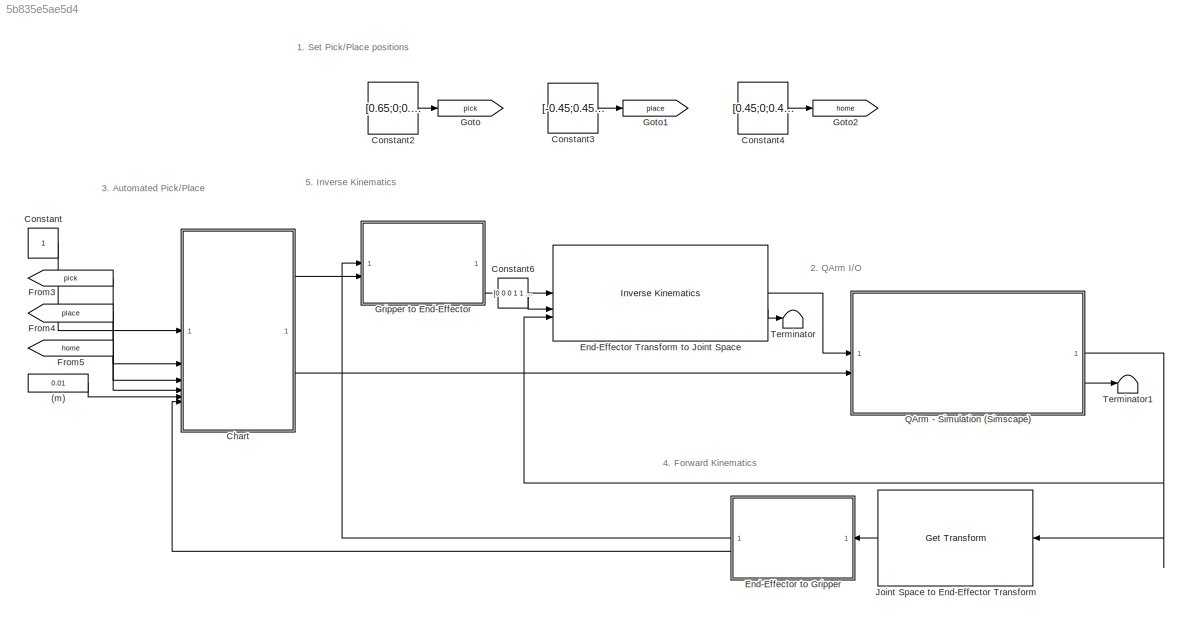
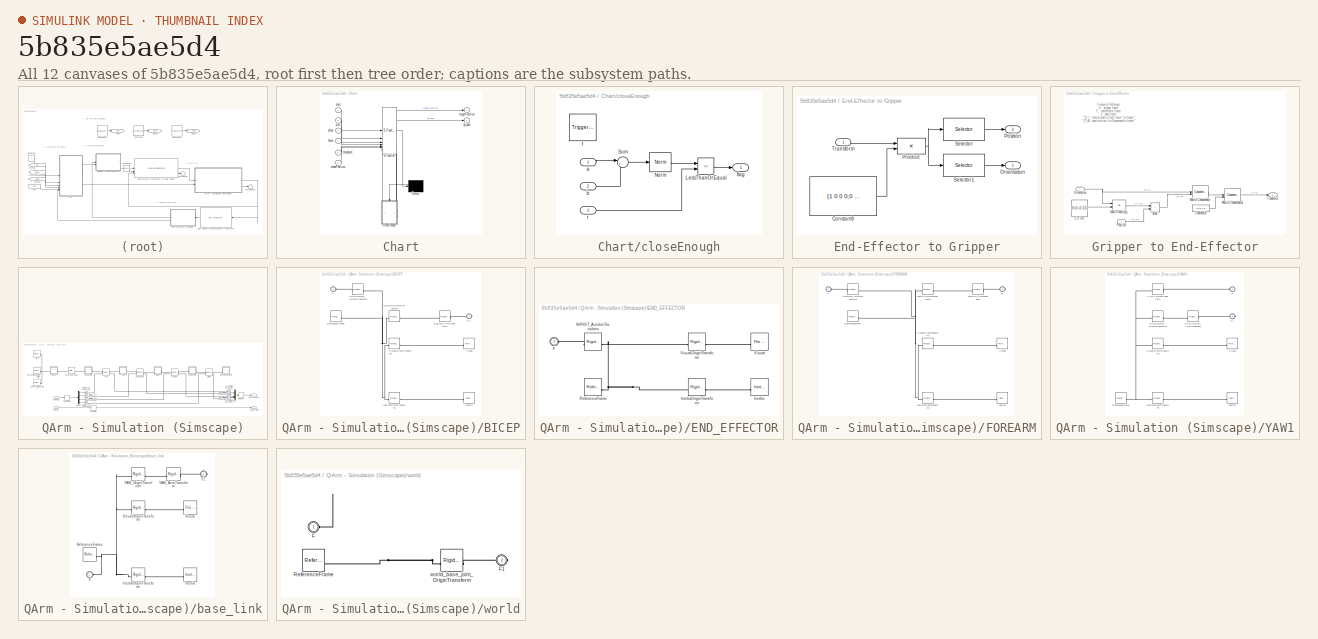
[diagram: thumbnail index - all 12 canvases of the model, root first then tree order]
MODEL slx_5b835e5ae5d4
KIND model
CONFIG AbsTol = auto
CONFIG EnableMultiTasking = off
CONFIG FixedStep = 0.005
CONFIG MaxStep = auto
CONFIG MinStep = auto
CONFIG RelTol = 1e-3
CONFIG SampleTimeConstraint = Unconstrained
CONFIG SolverName = ode2
CONFIG StartTime = 0.0
CONFIG StopTime = 60
BLOCK [Constant] (m)
  Value = 0.01
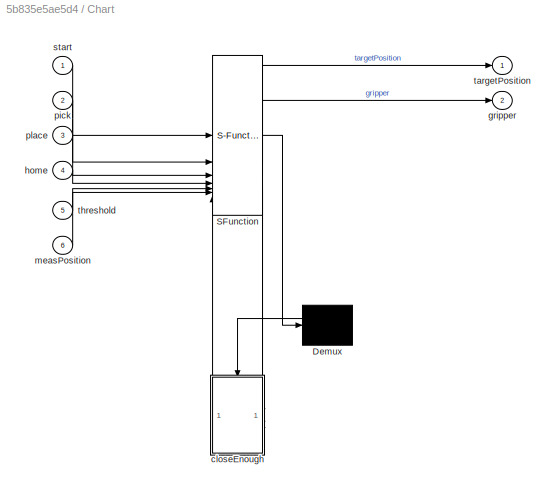
BLOCK [SubSystem] Chart
  ErrorFcn = Stateflow.Translate.translate
  PermitHierarchicalResolution = ExplicitOnly
  SFBlockType = Chart
  TreatAsAtomicUnit = on
BLOCK [Demux] Chart/ Demux 
  Outputs = 1
BLOCK [S-Function] Chart/ SFunction 
  EnableBusSupport = off
  FunctionName = sf_sfun
  PortCounts = [7 6]
  SFcnIsStateOwnerBlock = off
  SFunctionDeploymentMode = off
  Tag = Stateflow S-Function 3
BLOCK [SubSystem] Chart/closeEnough
  PreDeleteFcn = Stateflow.SLINSF.SimulinkMan.removePreDeleteFcn
  UndoDeleteFcn = Stateflow.SLINSF.SimulinkMan.restorePreDeleteFcn
BLOCK [RelationalOperator] Chart/closeEnough/LessThanOrEqual
  InputSameDT = off
  Operator = <=
  OutDataTypeStr = boolean
  RndMeth = Simplest
BLOCK [Reference] Chart/closeEnough/Norm  REF=quarc_library/Math Operations/Vectors/Norm
  SourceBlock = quarc_library/Math Operations/Vectors/Norm
  SourceProductName = QUARC Targets
  SourceType = Norm
BLOCK [Sum] Chart/closeEnough/Sum
  Inputs = |+-
BLOCK [Inport] Chart/closeEnough/a
  OutDataTypeStr = double
  PortDimensions = [3,1]
  SignalType = real
  VarSizeSig = No
BLOCK [Inport] Chart/closeEnough/b
  OutDataTypeStr = double
  Port = 2
  PortDimensions = [3,1]
  SignalType = real
  VarSizeSig = No
BLOCK [TriggerPort] Chart/closeEnough/f
  CopyFcn = Stateflow.SLINSF.SimulinkMan.removeBlockPreDeleteFcn
  PreDeleteFcn = Stateflow.SLINSF.SimulinkMan.unsafePredeleteFcn
  StatesWhenEnabling = held
  TriggerType = function-call
  VariantControl = (inherit)
BLOCK [Outport] Chart/closeEnough/flag
  VectorParamsAs1DForOutWhenUnconnected = off
BLOCK [Inport] Chart/closeEnough/t
  OutDataTypeStr = double
  Port = 3
  PortDimensions = [1]
  SignalType = real
  VarSizeSig = No
BLOCK [Outport] Chart/gripper
  Port = 2
  VectorParamsAs1DForOutWhenUnconnected = off
BLOCK [Inport] Chart/home
  Port = 4
BLOCK [Inport] Chart/measPosition
  Port = 6
BLOCK [Inport] Chart/pick
  Port = 2
BLOCK [Inport] Chart/place
  Port = 3
BLOCK [Inport] Chart/start
BLOCK [Outport] Chart/targetPosition
  VectorParamsAs1DForOutWhenUnconnected = off
BLOCK [Inport] Chart/threshold
  Port = 5
BLOCK [Constant] Constant
BLOCK [Constant] Constant2
  Value = [0.65;0;0.29]
  VectorParams1D = off
BLOCK [Constant] Constant3
  Value = [-0.45;0.45;0.35]
  VectorParams1D = off
BLOCK [Constant] Constant4
  Value = [0.45;0;0.49]
  VectorParams1D = off
BLOCK [Constant] Constant6
  Value = [0 0 0 1 1 1]
BLOCK [Reference] End-Effector Transform to Joint Space  REF=robotmaniplib/Inverse Kinematics
  NameLocation = top
  SourceBlock = robotmaniplib/Inverse Kinematics
  SourceType = Inverse Kinematics
BLOCK [SubSystem] End-Effector to Gripper
BLOCK [Constant] End-Effector to Gripper/Constant9
  Value = [1 0 0 0;0 1 0 0; 0 0 1 0.15; 0 0 0 1]
  VectorParams1D = off
BLOCK [Outport] End-Effector to Gripper/Orientation
BLOCK [Outport] End-Effector to Gripper/Position
  Port = 2
BLOCK [Product] End-Effector to Gripper/Product
  Multiplication = Matrix(*)
BLOCK [Selector] End-Effector to Gripper/Selector
  IndexOptions = Index vector (dialog),Index vector (dialog)
  Indices = [1:3],4
  InputPortWidth = 3
  NumberOfDimensions = 2
  OutputSizes = 1,1
BLOCK [Selector] End-Effector to Gripper/Selector1
  IndexOptions = Index vector (dialog),Index vector (dialog)
  Indices = [1:3],[1:3]
  InputPortWidth = 3
  NumberOfDimensions = 2
  OutputSizes = 1,1
BLOCK [Inport] End-Effector to Gripper/Transform
BLOCK [From] From3
  GotoTag = pick
BLOCK [From] From4
  GotoTag = place
BLOCK [From] From5
  GotoTag = home
BLOCK [Goto] Goto
  GotoTag = pick
BLOCK [Goto] Goto1
  GotoTag = place
BLOCK [Goto] Goto2
  GotoTag = home
BLOCK [SubSystem] Gripper to End-Effector
BLOCK [Sum] Gripper to End-Effector/Add
  IconShape = rectangular
BLOCK [Constant] Gripper to End-Effector/Constant10
  Value = [0 0 0 1]
  VectorParams1D = off
BLOCK [Constant] Gripper to End-Effector/E_P_GE
  Value = [0;0;-0.15]
  VectorParams1D = off
BLOCK [Concatenate] Gripper to End-Effector/Matrix Concatenate
  ConcatenateDimension = 2
  Mode = Multidimensional array
BLOCK [Concatenate] Gripper to End-Effector/Matrix Concatenate1
  Mode = Multidimensional array
BLOCK [Product] Gripper to End-Effector/Matrix Multiply
  Multiplication = Matrix(*)
BLOCK [Inport] Gripper to End-Effector/Orientation
  NameLocation = top
BLOCK [Inport] Gripper to End-Effector/Position
  Port = 2
BLOCK [Outport] Gripper to End-Effector/Transform
BLOCK [Reference] Joint Space to End-Effector Transform  REF=robotmaniplib/Get Transform
  SourceBlock = robotmaniplib/Get Transform
  SourceType = Get Transform
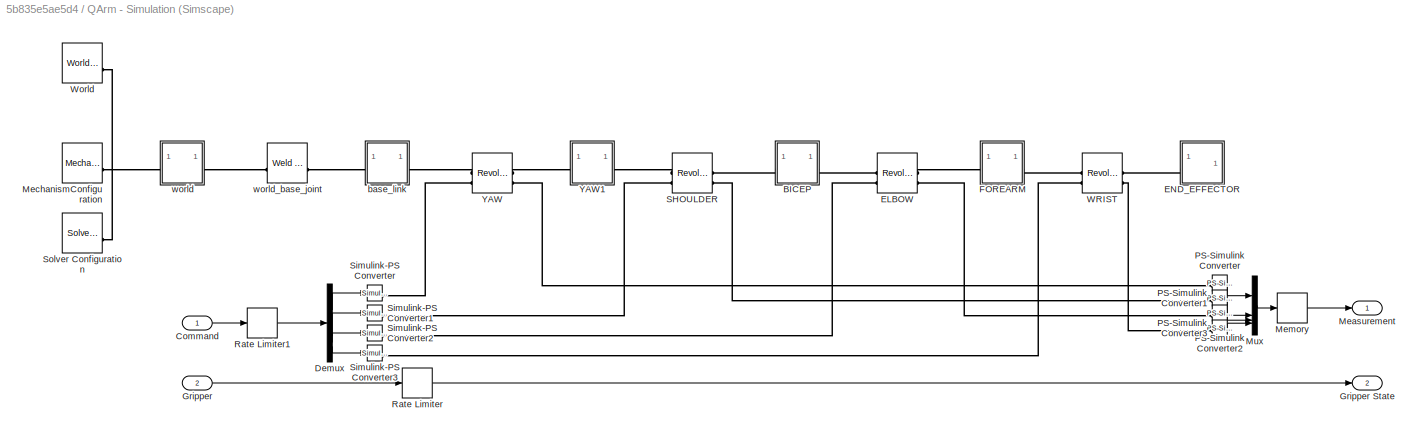
BLOCK [SubSystem] QArm - Simulation (Simscape)
BLOCK [SubSystem] QArm - Simulation (Simscape)/BICEP
BLOCK [Reference] QArm - Simulation (Simscape)/BICEP/ELBOW_AxisTransform  REF=sm_lib/Frames and
Transforms/Rigid
Transform
  SourceBlock = sm_lib/Frames and\nTransforms/Rigid\nTransform
  SourceType = Rigid\nTransform
BLOCK [Reference] QArm - Simulation (Simscape)/BICEP/ELBOW_OriginTransform  REF=sm_lib/Frames and
Transforms/Rigid
Transform
  SourceBlock = sm_lib/Frames and\nTransforms/Rigid\nTransform
  SourceType = Rigid\nTransform
BLOCK [PMIOPort] QArm - Simulation (Simscape)/BICEP/F
  NameLocation = top
  Side = Left
BLOCK [PMIOPort] QArm - Simulation (Simscape)/BICEP/F1
  Port = 2
  Side = Right
BLOCK [Reference] QArm - Simulation (Simscape)/BICEP/Inertia  REF=sm_lib/Body Elements/Inertia
  NameLocation = top
  SourceBlock = sm_lib/Body Elements/Inertia
  SourceType = Inertia
BLOCK [Reference] QArm - Simulation (Simscape)/BICEP/InertiaOriginTransform  REF=sm_lib/Frames and
Transforms/Rigid
Transform
  SourceBlock = sm_lib/Frames and\nTransforms/Rigid\nTransform
  SourceType = Rigid\nTransform
BLOCK [Reference] QArm - Simulation (Simscape)/BICEP/ReferenceFrame  REF=sm_lib/Frames and
Transforms/Reference
Frame
  SourceBlock = sm_lib/Frames and\nTransforms/Reference\nFrame
  SourceType = Reference\nFrame
BLOCK [Reference] QArm - Simulation (Simscape)/BICEP/SHOULDER_AxisInvTransform  REF=sm_lib/Frames and
Transforms/Rigid
Transform
  NameLocation = top
  SourceBlock = sm_lib/Frames and\nTransforms/Rigid\nTransform
  SourceType = Rigid\nTransform
BLOCK [Reference] QArm - Simulation (Simscape)/BICEP/Visual  REF=sm_lib/Body Elements/File Solid
  NameLocation = top
  SourceBlock = sm_lib/Body Elements/File Solid
  SourceType = File Solid
BLOCK [Reference] QArm - Simulation (Simscape)/BICEP/VisualOriginTransform  REF=sm_lib/Frames and
Transforms/Rigid
Transform
  SourceBlock = sm_lib/Frames and\nTransforms/Rigid\nTransform
  SourceType = Rigid\nTransform
BLOCK [Inport] QArm - Simulation (Simscape)/Command
BLOCK [Demux] QArm - Simulation (Simscape)/Demux
BLOCK [Reference] QArm - Simulation (Simscape)/ELBOW  REF=sm_lib/Joints/Revolute Joint
  SourceBlock = sm_lib/Joints/Revolute Joint
  SourceType = Revolute Joint
BLOCK [SubSystem] QArm - Simulation (Simscape)/END_EFFECTOR
BLOCK [PMIOPort] QArm - Simulation (Simscape)/END_EFFECTOR/F
  NameLocation = top
  Side = Left
BLOCK [Reference] QArm - Simulation (Simscape)/END_EFFECTOR/Inertia  REF=sm_lib/Body Elements/Inertia
  NameLocation = top
  SourceBlock = sm_lib/Body Elements/Inertia
  SourceType = Inertia
BLOCK [Reference] QArm - Simulation (Simscape)/END_EFFECTOR/InertiaOriginTransform  REF=sm_lib/Frames and
Transforms/Rigid
Transform
  SourceBlock = sm_lib/Frames and\nTransforms/Rigid\nTransform
  SourceType = Rigid\nTransform
BLOCK [Reference] QArm - Simulation (Simscape)/END_EFFECTOR/ReferenceFrame  REF=sm_lib/Frames and
Transforms/Reference
Frame
  SourceBlock = sm_lib/Frames and\nTransforms/Reference\nFrame
  SourceType = Reference\nFrame
BLOCK [Reference] QArm - Simulation (Simscape)/END_EFFECTOR/Visual  REF=sm_lib/Body Elements/File Solid
  NameLocation = top
  SourceBlock = sm_lib/Body Elements/File Solid
  SourceType = File Solid
BLOCK [Reference] QArm - Simulation (Simscape)/END_EFFECTOR/VisualOriginTransform  REF=sm_lib/Frames and
Transforms/Rigid
Transform
  SourceBlock = sm_lib/Frames and\nTransforms/Rigid\nTransform
  SourceType = Rigid\nTransform
BLOCK [Reference] QArm - Simulation (Simscape)/END_EFFECTOR/WRIST_AxisInvTransform  REF=sm_lib/Frames and
Transforms/Rigid
Transform
  NameLocation = top
  SourceBlock = sm_lib/Frames and\nTransforms/Rigid\nTransform
  SourceType = Rigid\nTransform
BLOCK [SubSystem] QArm - Simulation (Simscape)/FOREARM
BLOCK [Reference] QArm - Simulation (Simscape)/FOREARM/ELBOW_AxisInvTransform  REF=sm_lib/Frames and
Transforms/Rigid
Transform
  NameLocation = top
  SourceBlock = sm_lib/Frames and\nTransforms/Rigid\nTransform
  SourceType = Rigid\nTransform
BLOCK [PMIOPort] QArm - Simulation (Simscape)/FOREARM/F
  NameLocation = top
  Side = Left
BLOCK [PMIOPort] QArm - Simulation (Simscape)/FOREARM/F1
  Port = 2
  Side = Right
BLOCK [Reference] QArm - Simulation (Simscape)/FOREARM/Inertia  REF=sm_lib/Body Elements/Inertia
  NameLocation = top
  SourceBlock = sm_lib/Body Elements/Inertia
  SourceType = Inertia
BLOCK [Reference] QArm - Simulation (Simscape)/FOREARM/InertiaOriginTransform  REF=sm_lib/Frames and
Transforms/Rigid
Transform
  SourceBlock = sm_lib/Frames and\nTransforms/Rigid\nTransform
  SourceType = Rigid\nTransform
BLOCK [Reference] QArm - Simulation (Simscape)/FOREARM/ReferenceFrame  REF=sm_lib/Frames and
Transforms/Reference
Frame
  SourceBlock = sm_lib/Frames and\nTransforms/Reference\nFrame
  SourceType = Reference\nFrame
BLOCK [Reference] QArm - Simulation (Simscape)/FOREARM/Visual  REF=sm_lib/Body Elements/File Solid
  NameLocation = top
  SourceBlock = sm_lib/Body Elements/File Solid
  SourceType = File Solid
BLOCK [Reference] QArm - Simulation (Simscape)/FOREARM/VisualOriginTransform  REF=sm_lib/Frames and
Transforms/Rigid
Transform
  SourceBlock = sm_lib/Frames and\nTransforms/Rigid\nTransform
  SourceType = Rigid\nTransform
BLOCK [Reference] QArm - Simulation (Simscape)/FOREARM/WRIST_AxisTransform  REF=sm_lib/Frames and
Transforms/Rigid
Transform
  SourceBlock = sm_lib/Frames and\nTransforms/Rigid\nTransform
  SourceType = Rigid\nTransform
BLOCK [Reference] QArm - Simulation (Simscape)/FOREARM/WRIST_OriginTransform  REF=sm_lib/Frames and
Transforms/Rigid
Transform
  SourceBlock = sm_lib/Frames and\nTransforms/Rigid\nTransform
  SourceType = Rigid\nTransform
BLOCK [Inport] QArm - Simulation (Simscape)/Gripper
  Port = 2
BLOCK [Outport] QArm - Simulation (Simscape)/Gripper State
  Port = 2
BLOCK [Outport] QArm - Simulation (Simscape)/Measurement
BLOCK [Reference] QArm - Simulation (Simscape)/MechanismConfiguration  REF=sm_lib/Utilities/Mechanism
Configuration
  SourceBlock = sm_lib/Utilities/Mechanism\nConfiguration
  SourceType = Mechanism\nConfiguration
BLOCK [Memory] QArm - Simulation (Simscape)/Memory
BLOCK [Mux] QArm - Simulation (Simscape)/Mux
  DisplayOption = bar
BLOCK [Reference] QArm - Simulation (Simscape)/PS-Simulink Converter  REF=nesl_utility/PS-Simulink
Converter
  SourceBlock = nesl_utility/PS-Simulink\nConverter
  SourceType = PS-Simulink\nConverter
BLOCK [Reference] QArm - Simulation (Simscape)/PS-Simulink Converter1  REF=nesl_utility/PS-Simulink
Converter
  SourceBlock = nesl_utility/PS-Simulink\nConverter
  SourceType = PS-Simulink\nConverter
BLOCK [Reference] QArm - Simulation (Simscape)/PS-Simulink Converter2  REF=nesl_utility/PS-Simulink
Converter
  SourceBlock = nesl_utility/PS-Simulink\nConverter
  SourceType = PS-Simulink\nConverter
BLOCK [Reference] QArm - Simulation (Simscape)/PS-Simulink Converter3  REF=nesl_utility/PS-Simulink
Converter
  SourceBlock = nesl_utility/PS-Simulink\nConverter
  SourceType = PS-Simulink\nConverter
BLOCK [RateLimiter] QArm - Simulation (Simscape)/Rate Limiter
  FallingSlewLimit = -0.6
  RisingSlewLimit = 0.6
  SampleTimeMode = inherited
BLOCK [RateLimiter] QArm - Simulation (Simscape)/Rate Limiter1
  FallingSlewLimit = [-pi/2; -pi/2; -pi/2; -pi]
  RisingSlewLimit = [pi/2; pi/2; pi/2; pi]
  SampleTimeMode = inherited
BLOCK [Reference] QArm - Simulation (Simscape)/SHOULDER  REF=sm_lib/Joints/Revolute Joint
  SourceBlock = sm_lib/Joints/Revolute Joint
  SourceType = Revolute Joint
BLOCK [Reference] QArm - Simulation (Simscape)/Simulink-PS Converter  REF=nesl_utility/Simulink-PS
Converter
  SourceBlock = nesl_utility/Simulink-PS\nConverter
  SourceType = Simulink-PS\nConverter
BLOCK [Reference] QArm - Simulation (Simscape)/Simulink-PS Converter1  REF=nesl_utility/Simulink-PS
Converter
  SourceBlock = nesl_utility/Simulink-PS\nConverter
  SourceType = Simulink-PS\nConverter
BLOCK [Reference] QArm - Simulation (Simscape)/Simulink-PS Converter2  REF=nesl_utility/Simulink-PS
Converter
  SourceBlock = nesl_utility/Simulink-PS\nConverter
  SourceType = Simulink-PS\nConverter
BLOCK [Reference] QArm - Simulation (Simscape)/Simulink-PS Converter3  REF=nesl_utility/Simulink-PS
Converter
  SourceBlock = nesl_utility/Simulink-PS\nConverter
  SourceType = Simulink-PS\nConverter
BLOCK [Reference] QArm - Simulation (Simscape)/Solver Configuration  REF=nesl_utility/Solver
Configuration
  SourceBlock = nesl_utility/Solver\nConfiguration
  SourceType = Solver\nConfiguration
BLOCK [Reference] QArm - Simulation (Simscape)/WRIST  REF=sm_lib/Joints/Revolute Joint
  SourceBlock = sm_lib/Joints/Revolute Joint
  SourceType = Revolute Joint
BLOCK [Reference] QArm - Simulation (Simscape)/World  REF=sm_lib/Frames and
Transforms/World Frame
  SourceBlock = sm_lib/Frames and\nTransforms/World Frame
  SourceType = World Frame
BLOCK [Reference] QArm - Simulation (Simscape)/YAW  REF=sm_lib/Joints/Revolute Joint
  SourceBlock = sm_lib/Joints/Revolute Joint
  SourceType = Revolute Joint
BLOCK [SubSystem] QArm - Simulation (Simscape)/YAW1
BLOCK [PMIOPort] QArm - Simulation (Simscape)/YAW1/F
  Side = Left
BLOCK [PMIOPort] QArm - Simulation (Simscape)/YAW1/F1
  Port = 2
  Side = Right
BLOCK [Reference] QArm - Simulation (Simscape)/YAW1/Inertia  REF=sm_lib/Body Elements/Inertia
  NameLocation = top
  SourceBlock = sm_lib/Body Elements/Inertia
  SourceType = Inertia
BLOCK [Reference] QArm - Simulation (Simscape)/YAW1/InertiaOriginTransform  REF=sm_lib/Frames and
Transforms/Rigid
Transform
  SourceBlock = sm_lib/Frames and\nTransforms/Rigid\nTransform
  SourceType = Rigid\nTransform
BLOCK [Reference] QArm - Simulation (Simscape)/YAW1/ReferenceFrame  REF=sm_lib/Frames and
Transforms/Reference
Frame
  SourceBlock = sm_lib/Frames and\nTransforms/Reference\nFrame
  SourceType = Reference\nFrame
BLOCK [Reference] QArm - Simulation (Simscape)/YAW1/SHOULDER_AxisTransform  REF=sm_lib/Frames and
Transforms/Rigid
Transform
  SourceBlock = sm_lib/Frames and\nTransforms/Rigid\nTransform
  SourceType = Rigid\nTransform
BLOCK [Reference] QArm - Simulation (Simscape)/YAW1/SHOULDER_OriginTransform  REF=sm_lib/Frames and
Transforms/Rigid
Transform
  SourceBlock = sm_lib/Frames and\nTransforms/Rigid\nTransform
  SourceType = Rigid\nTransform
BLOCK [Reference] QArm - Simulation (Simscape)/YAW1/Visual  REF=sm_lib/Body Elements/File Solid
  NameLocation = top
  SourceBlock = sm_lib/Body Elements/File Solid
  SourceType = File Solid
BLOCK [Reference] QArm - Simulation (Simscape)/YAW1/VisualOriginTransform  REF=sm_lib/Frames and
Transforms/Rigid
Transform
  SourceBlock = sm_lib/Frames and\nTransforms/Rigid\nTransform
  SourceType = Rigid\nTransform
BLOCK [Reference] QArm - Simulation (Simscape)/YAW1/YAW_AxisInvTransform  REF=sm_lib/Frames and
Transforms/Rigid
Transform
  SourceBlock = sm_lib/Frames and\nTransforms/Rigid\nTransform
  SourceType = Rigid\nTransform
BLOCK [SubSystem] QArm - Simulation (Simscape)/base_link
BLOCK [PMIOPort] QArm - Simulation (Simscape)/base_link/F
  Side = Left
BLOCK [PMIOPort] QArm - Simulation (Simscape)/base_link/F1
  Port = 2
  Side = Right
BLOCK [Reference] QArm - Simulation (Simscape)/base_link/Inertia  REF=sm_lib/Body Elements/Inertia
  NameLocation = top
  SourceBlock = sm_lib/Body Elements/Inertia
  SourceType = Inertia
BLOCK [Reference] QArm - Simulation (Simscape)/base_link/InertiaOriginTransform  REF=sm_lib/Frames and
Transforms/Rigid
Transform
  SourceBlock = sm_lib/Frames and\nTransforms/Rigid\nTransform
  SourceType = Rigid\nTransform
BLOCK [Reference] QArm - Simulation (Simscape)/base_link/ReferenceFrame  REF=sm_lib/Frames and
Transforms/Reference
Frame
  SourceBlock = sm_lib/Frames and\nTransforms/Reference\nFrame
  SourceType = Reference\nFrame
BLOCK [Reference] QArm - Simulation (Simscape)/base_link/Visual  REF=sm_lib/Body Elements/File Solid
  NameLocation = top
  SourceBlock = sm_lib/Body Elements/File Solid
  SourceType = File Solid
BLOCK [Reference] QArm - Simulation (Simscape)/base_link/VisualOriginTransform  REF=sm_lib/Frames and
Transforms/Rigid
Transform
  SourceBlock = sm_lib/Frames and\nTransforms/Rigid\nTransform
  SourceType = Rigid\nTransform
BLOCK [Reference] QArm - Simulation (Simscape)/base_link/YAW_AxisTransform  REF=sm_lib/Frames and
Transforms/Rigid
Transform
  SourceBlock = sm_lib/Frames and\nTransforms/Rigid\nTransform
  SourceType = Rigid\nTransform
BLOCK [Reference] QArm - Simulation (Simscape)/base_link/YAW_OriginTransform  REF=sm_lib/Frames and
Transforms/Rigid
Transform
  SourceBlock = sm_lib/Frames and\nTransforms/Rigid\nTransform
  SourceType = Rigid\nTransform
BLOCK [SubSystem] QArm - Simulation (Simscape)/world
BLOCK [PMIOPort] QArm - Simulation (Simscape)/world/F
  NameLocation = top
  Side = Left
BLOCK [PMIOPort] QArm - Simulation (Simscape)/world/F1
  Port = 2
  Side = Right
BLOCK [Reference] QArm - Simulation (Simscape)/world/ReferenceFrame  REF=sm_lib/Frames and
Transforms/Reference
Frame
  SourceBlock = sm_lib/Frames and\nTransforms/Reference\nFrame
  SourceType = Reference\nFrame
BLOCK [Reference] QArm - Simulation (Simscape)/world/world_base_joint_OriginTransform  REF=sm_lib/Frames and
Transforms/Rigid
Transform
  SourceBlock = sm_lib/Frames and\nTransforms/Rigid\nTransform
  SourceType = Rigid\nTransform
BLOCK [Reference] QArm - Simulation (Simscape)/world_base_joint  REF=sm_lib/Joints/Weld Joint
  SourceBlock = sm_lib/Joints/Weld Joint
  SourceType = Weld Joint
BLOCK [Terminator] Terminator
BLOCK [Terminator] Terminator1
ANNOTATION (root): 1. Set Pick/Place positions
ANNOTATION (root): 2. QArm I/O
ANNOTATION (root): 3. Automated Pick/Place
ANNOTATION (root): 4. Forward Kinematics
ANNOTATION (root): 5. Inverse Kinematics
ANNOTATION Gripper to End-Effector: Frames of Reference: G : gripper frame E : end-effector frame 0 : base frame *_R_^ : rotation matrix from frame ^ to frame * *_P_#$ : position from # to $ expressed in frame * The end-effector and gripper frames are oriented the same way (E_R_0 = identity). 0_P_0G + 0_P_GE = 0_P_0E {E} {G} __________ . ____/_ | \ | | | | ___|____ ======= {0}
LINE (m):1 -> Chart:5
LINE Chart:1 -> Gripper to End-Effector:2
LINE Chart:2 -> QArm - Simulation (Simscape):2
LINE Constant2:1 -> Goto:1
LINE Constant3:1 -> Goto1:1
LINE Constant4:1 -> Goto2:1
LINE Constant6:1 -> End-Effector Transform to Joint Space:2
LINE Constant:1 -> Chart:1
LINE End-Effector Transform to Joint Space:1 -> QArm - Simulation (Simscape):1
LINE End-Effector Transform to Joint Space:2 -> Terminator:1
LINE End-Effector to Gripper/Constant9:1 -> End-Effector to Gripper/Product:2
NET End-Effector to Gripper/Product:1 -> End-Effector to Gripper/Selector1:1, End-Effector to Gripper/Selector:1
LINE End-Effector to Gripper/Selector1:1 -> End-Effector to Gripper/Orientation:1
LINE End-Effector to Gripper/Selector:1 -> End-Effector to Gripper/Position:1
LINE End-Effector to Gripper/Transform:1 -> End-Effector to Gripper/Product:1
LINE End-Effector to Gripper:1 -> Gripper to End-Effector:1
LINE End-Effector to Gripper:2 -> Chart:6
LINE From3:1 -> Chart:2
LINE From4:1 -> Chart:3
LINE From5:1 -> Chart:4
LINE Gripper to End-Effector/Add:1 -> Gripper to End-Effector/Matrix Concatenate:2
LINE Gripper to End-Effector/Constant10:1 -> Gripper to End-Effector/Matrix Concatenate1:2
LINE Gripper to End-Effector/E_P_GE:1 -> Gripper to End-Effector/Matrix Multiply:2
LINE Gripper to End-Effector/Matrix Concatenate1:1 -> Gripper to End-Effector/Transform:1
LINE Gripper to End-Effector/Matrix Concatenate:1 -> Gripper to End-Effector/Matrix Concatenate1:1
LINE Gripper to End-Effector/Matrix Multiply:1 -> Gripper to End-Effector/Add:1
NET Gripper to End-Effector/Orientation:1 -> Gripper to End-Effector/Matrix Concatenate:1, Gripper to End-Effector/Matrix Multiply:1
LINE Gripper to End-Effector/Position:1 -> Gripper to End-Effector/Add:2
LINE Gripper to End-Effector:1 -> End-Effector Transform to Joint Space:1
LINE Joint Space to End-Effector Transform:1 -> End-Effector to Gripper:1
LINE QArm - Simulation (Simscape)/Command:1 -> QArm - Simulation (Simscape)/Rate Limiter1:1
LINE QArm - Simulation (Simscape)/Demux:1 -> QArm - Simulation (Simscape)/Simulink-PS Converter:1
LINE QArm - Simulation (Simscape)/Demux:2 -> QArm - Simulation (Simscape)/Simulink-PS Converter1:1
LINE QArm - Simulation (Simscape)/Demux:3 -> QArm - Simulation (Simscape)/Simulink-PS Converter2:1
LINE QArm - Simulation (Simscape)/Demux:4 -> QArm - Simulation (Simscape)/Simulink-PS Converter3:1
LINE QArm - Simulation (Simscape)/Gripper:1 -> QArm - Simulation (Simscape)/Rate Limiter:1
LINE QArm - Simulation (Simscape)/Memory:1 -> QArm - Simulation (Simscape)/Measurement:1
LINE QArm - Simulation (Simscape)/Mux:1 -> QArm - Simulation (Simscape)/Memory:1
LINE QArm - Simulation (Simscape)/PS-Simulink Converter1:1 -> QArm - Simulation (Simscape)/Mux:2
LINE QArm - Simulation (Simscape)/PS-Simulink Converter2:1 -> QArm - Simulation (Simscape)/Mux:3
LINE QArm - Simulation (Simscape)/PS-Simulink Converter3:1 -> QArm - Simulation (Simscape)/Mux:4
LINE QArm - Simulation (Simscape)/PS-Simulink Converter:1 -> QArm - Simulation (Simscape)/Mux:1
LINE QArm - Simulation (Simscape)/Rate Limiter1:1 -> QArm - Simulation (Simscape)/Demux:1
LINE QArm - Simulation (Simscape)/Rate Limiter:1 -> QArm - Simulation (Simscape)/Gripper State:1
NET QArm - Simulation (Simscape):1 -> End-Effector Transform to Joint Space:3, Joint Space to End-Effector Transform:1
LINE QArm - Simulation (Simscape):2 -> Terminator1:1
PLINE QArm - Simulation (Simscape)/BICEP/ELBOW_AxisTransform:LConn1 -- QArm - Simulation (Simscape)/BICEP/ELBOW_OriginTransform:RConn1
PLINE QArm - Simulation (Simscape)/BICEP/ELBOW_AxisTransform:RConn1 -- QArm - Simulation (Simscape)/BICEP/F1:RConn1
PNET net1: QArm - Simulation (Simscape)/BICEP/ELBOW_OriginTransform:LConn1 -- QArm - Simulation (Simscape)/BICEP/InertiaOriginTransform:LConn1 -- QArm - Simulation (Simscape)/BICEP/ReferenceFrame:RConn1 -- QArm - Simulation (Simscape)/BICEP/SHOULDER_AxisInvTransform:LConn1 -- QArm - Simulation (Simscape)/BICEP/VisualOriginTransform:LConn1
PLINE QArm - Simulation (Simscape)/BICEP/F:RConn1 -- QArm - Simulation (Simscape)/BICEP/SHOULDER_AxisInvTransform:RConn1
PLINE QArm - Simulation (Simscape)/BICEP/Inertia:RConn1 -- QArm - Simulation (Simscape)/BICEP/InertiaOriginTransform:RConn1
PLINE QArm - Simulation (Simscape)/BICEP/Visual:RConn1 -- QArm - Simulation (Simscape)/BICEP/VisualOriginTransform:RConn1
PLINE QArm - Simulation (Simscape)/BICEP:LConn1 -- QArm - Simulation (Simscape)/SHOULDER:RConn1
PLINE QArm - Simulation (Simscape)/BICEP:RConn1 -- QArm - Simulation (Simscape)/ELBOW:LConn1
PLINE QArm - Simulation (Simscape)/ELBOW:LConn2 -- QArm - Simulation (Simscape)/Simulink-PS Converter2:RConn1
PLINE QArm - Simulation (Simscape)/ELBOW:RConn1 -- QArm - Simulation (Simscape)/FOREARM:LConn1
PLINE QArm - Simulation (Simscape)/ELBOW:RConn2 -- QArm - Simulation (Simscape)/PS-Simulink Converter2:LConn1
PLINE QArm - Simulation (Simscape)/END_EFFECTOR/F:RConn1 -- QArm - Simulation (Simscape)/END_EFFECTOR/WRIST_AxisInvTransform:RConn1
PLINE QArm - Simulation (Simscape)/END_EFFECTOR/Inertia:RConn1 -- QArm - Simulation (Simscape)/END_EFFECTOR/InertiaOriginTransform:RConn1
PNET net2: QArm - Simulation (Simscape)/END_EFFECTOR/InertiaOriginTransform:LConn1 -- QArm - Simulation (Simscape)/END_EFFECTOR/ReferenceFrame:RConn1 -- QArm - Simulation (Simscape)/END_EFFECTOR/VisualOriginTransform:LConn1 -- QArm - Simulation (Simscape)/END_EFFECTOR/WRIST_AxisInvTransform:LConn1
PLINE QArm - Simulation (Simscape)/END_EFFECTOR/Visual:RConn1 -- QArm - Simulation (Simscape)/END_EFFECTOR/VisualOriginTransform:RConn1
PLINE QArm - Simulation (Simscape)/END_EFFECTOR:LConn1 -- QArm - Simulation (Simscape)/WRIST:RConn1
PNET net3: QArm - Simulation (Simscape)/FOREARM/ELBOW_AxisInvTransform:LConn1 -- QArm - Simulation (Simscape)/FOREARM/InertiaOriginTransform:LConn1 -- QArm - Simulation (Simscape)/FOREARM/ReferenceFrame:RConn1 -- QArm - Simulation (Simscape)/FOREARM/VisualOriginTransform:LConn1 -- QArm - Simulation (Simscape)/FOREARM/WRIST_OriginTransform:LConn1
PLINE QArm - Simulation (Simscape)/FOREARM/ELBOW_AxisInvTransform:RConn1 -- QArm - Simulation (Simscape)/FOREARM/F:RConn1
PLINE QArm - Simulation (Simscape)/FOREARM/F1:RConn1 -- QArm - Simulation (Simscape)/FOREARM/WRIST_AxisTransform:RConn1
PLINE QArm - Simulation (Simscape)/FOREARM/Inertia:RConn1 -- QArm - Simulation (Simscape)/FOREARM/InertiaOriginTransform:RConn1
PLINE QArm - Simulation (Simscape)/FOREARM/Visual:RConn1 -- QArm - Simulation (Simscape)/FOREARM/VisualOriginTransform:RConn1
PLINE QArm - Simulation (Simscape)/FOREARM/WRIST_AxisTransform:LConn1 -- QArm - Simulation (Simscape)/FOREARM/WRIST_OriginTransform:RConn1
PLINE QArm - Simulation (Simscape)/FOREARM:RConn1 -- QArm - Simulation (Simscape)/WRIST:LConn1
PNET net4: QArm - Simulation (Simscape)/MechanismConfiguration:RConn1 -- QArm - Simulation (Simscape)/Solver Configuration:RConn1 -- QArm - Simulation (Simscape)/World:RConn1 -- QArm - Simulation (Simscape)/world:LConn1
PLINE QArm - Simulation (Simscape)/PS-Simulink Converter1:LConn1 -- QArm - Simulation (Simscape)/SHOULDER:RConn2
PLINE QArm - Simulation (Simscape)/PS-Simulink Converter3:LConn1 -- QArm - Simulation (Simscape)/WRIST:RConn2
PLINE QArm - Simulation (Simscape)/PS-Simulink Converter:LConn1 -- QArm - Simulation (Simscape)/YAW:RConn2
PLINE QArm - Simulation (Simscape)/SHOULDER:LConn1 -- QArm - Simulation (Simscape)/YAW1:RConn1
PLINE QArm - Simulation (Simscape)/SHOULDER:LConn2 -- QArm - Simulation (Simscape)/Simulink-PS Converter1:RConn1
PLINE QArm - Simulation (Simscape)/Simulink-PS Converter3:RConn1 -- QArm - Simulation (Simscape)/WRIST:LConn2
PLINE QArm - Simulation (Simscape)/Simulink-PS Converter:RConn1 -- QArm - Simulation (Simscape)/YAW:LConn2
PLINE QArm - Simulation (Simscape)/YAW1/F1:RConn1 -- QArm - Simulation (Simscape)/YAW1/SHOULDER_AxisTransform:RConn1
PLINE QArm - Simulation (Simscape)/YAW1/F:RConn1 -- QArm - Simulation (Simscape)/YAW1/YAW_AxisInvTransform:RConn1
PLINE QArm - Simulation (Simscape)/YAW1/Inertia:RConn1 -- QArm - Simulation (Simscape)/YAW1/InertiaOriginTransform:RConn1
PNET net5: QArm - Simulation (Simscape)/YAW1/InertiaOriginTransform:LConn1 -- QArm - Simulation (Simscape)/YAW1/ReferenceFrame:RConn1 -- QArm - Simulation (Simscape)/YAW1/SHOULDER_OriginTransform:LConn1 -- QArm - Simulation (Simscape)/YAW1/VisualOriginTransform:LConn1 -- QArm - Simulation (Simscape)/YAW1/YAW_AxisInvTransform:LConn1
PLINE QArm - Simulation (Simscape)/YAW1/SHOULDER_AxisTransform:LConn1 -- QArm - Simulation (Simscape)/YAW1/SHOULDER_OriginTransform:RConn1
PLINE QArm - Simulation (Simscape)/YAW1/Visual:RConn1 -- QArm - Simulation (Simscape)/YAW1/VisualOriginTransform:RConn1
PLINE QArm - Simulation (Simscape)/YAW1:LConn1 -- QArm - Simulation (Simscape)/YAW:RConn1
PLINE QArm - Simulation (Simscape)/YAW:LConn1 -- QArm - Simulation (Simscape)/base_link:RConn1
PLINE QArm - Simulation (Simscape)/base_link/F1:RConn1 -- QArm - Simulation (Simscape)/base_link/YAW_AxisTransform:RConn1
PNET net6: QArm - Simulation (Simscape)/base_link/F:RConn1 -- QArm - Simulation (Simscape)/base_link/InertiaOriginTransform:LConn1 -- QArm - Simulation (Simscape)/base_link/ReferenceFrame:RConn1 -- QArm - Simulation (Simscape)/base_link/VisualOriginTransform:LConn1 -- QArm - Simulation (Simscape)/base_link/YAW_OriginTransform:LConn1
PLINE QArm - Simulation (Simscape)/base_link/Inertia:RConn1 -- QArm - Simulation (Simscape)/base_link/InertiaOriginTransform:RConn1
PLINE QArm - Simulation (Simscape)/base_link/Visual:RConn1 -- QArm - Simulation (Simscape)/base_link/VisualOriginTransform:RConn1
PLINE QArm - Simulation (Simscape)/base_link/YAW_AxisTransform:LConn1 -- QArm - Simulation (Simscape)/base_link/YAW_OriginTransform:RConn1
PLINE QArm - Simulation (Simscape)/base_link:LConn1 -- QArm - Simulation (Simscape)/world_base_joint:RConn1
PLINE QArm - Simulation (Simscape)/world/F1:RConn1 -- QArm - Simulation (Simscape)/world/world_base_joint_OriginTransform:RConn1
PNET net7: QArm - Simulation (Simscape)/world/F:RConn1 -- QArm - Simulation (Simscape)/world/ReferenceFrame:RConn1 -- QArm - Simulation (Simscape)/world/world_base_joint_OriginTransform:LConn1
PLINE QArm - Simulation (Simscape)/world:RConn1 -- QArm - Simulation (Simscape)/world_base_joint:LConn1
note: NET lines group one-source signal fan-out (src -> all destinations, sorted); 1:1 wires keep LINE; PNET lines group multi-terminal physical nets as a canonical sorted terminal list (undirected conserving connections); 2-terminal nets keep the pairwise PLINE form
CHART Chart states=7 transitions=8
  STATE_LABEL 'Wait\n\ngripper=0;\ntargetPosition=home;'
  STATE_LABEL 'flag = closeEnough(a,b,t)'
  STATE_LABEL 'GotoPick\n\ntargetPosition=pick;\nflag = closeEnough(measPosition, targetPosition, threshold);'
  STATE_LABEL 'CloseGripper\n\ngripper=1;'
  STATE_LABEL 'GotoHome\n\ntargetPosition=home;\nflag = closeEnough(measPosition, targetPosition, threshold);'
  STATE_LABEL 'GotoPlace\n\ntargetPosition=place;\nflag = closeEnough(measPosition, targetPosition, threshold);'
  STATE_LABEL 'OpenGripper\n\ngripper=0;\n'
CHART  states=0 transitions=0
